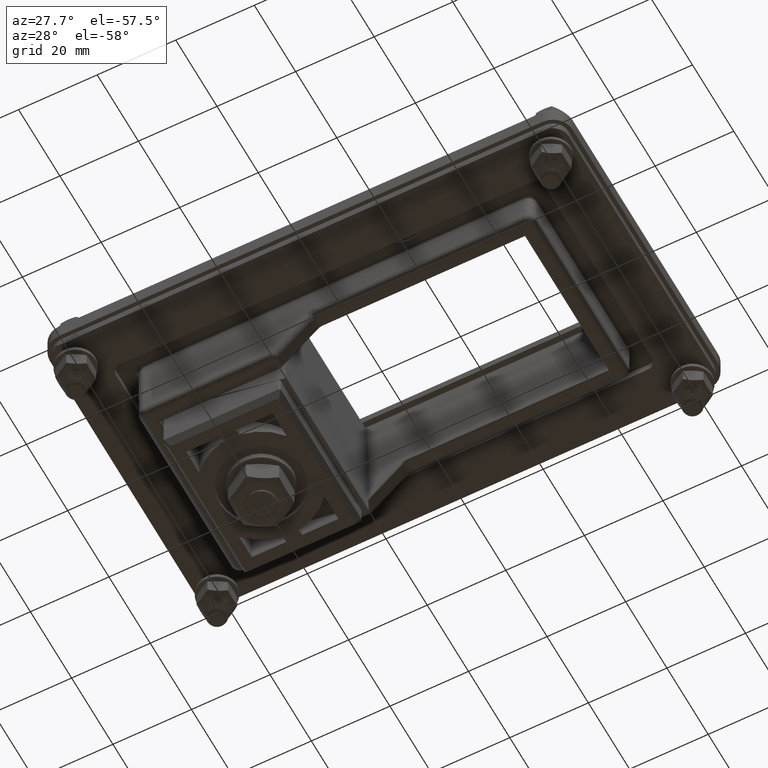
[diagram: clean part render]
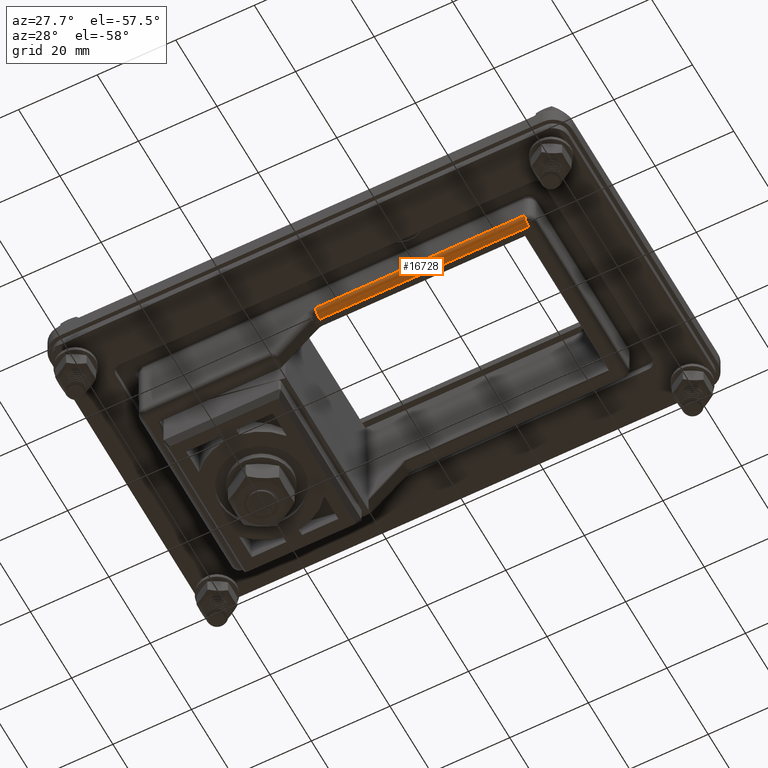
[diagram: same view with one face highlighted and labeled with its STEP entity id]
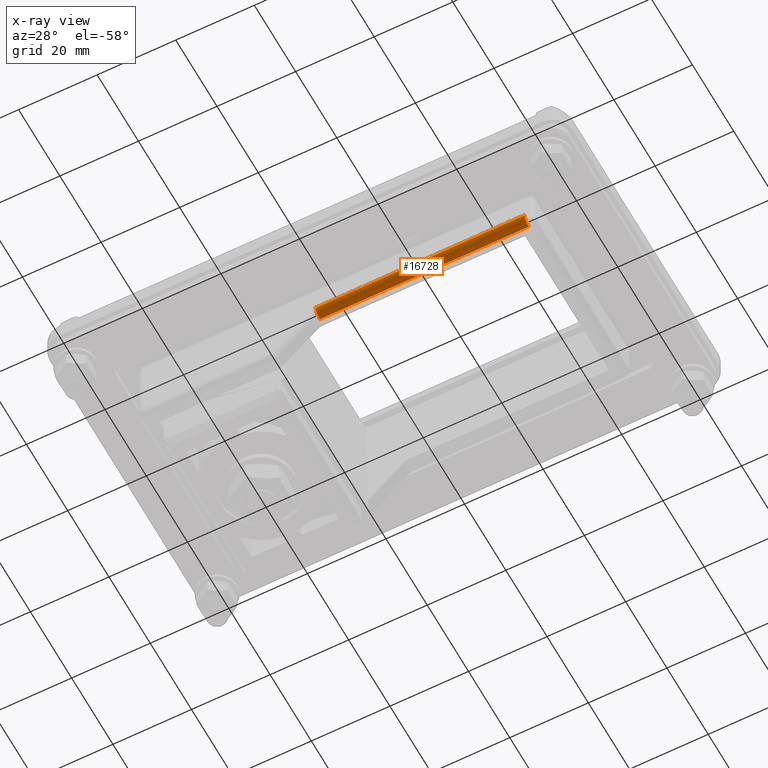
[diagram: x-ray of the same camera — body ghosted, the highlighted face saturated]
A machine part, auxiliary view. The second image highlights one B-rep face of the part: STEP entity #16728.
The next image is the same camera in x-ray: the body ghosted, the highlighted face saturated — about 0% of this face is hidden behind the body in this view.
In plain terms, the highlighted cylindrical surface (edge-blend (fillet) strip) has radius 2 mm, axis along (1, 0, 0).
Its self-contained STEP definition (entity closure, byte-faithful):
#1183=CARTESIAN_POINT('',(-14.671572875253826,-22.26737757881002,0.0));
#1184=VERTEX_POINT('',#1183);
#1226=CARTESIAN_POINT('',(38.517377578810056,-22.26737757881002,0.0));
#1227=VERTEX_POINT('',#1226);
#1234=CARTESIAN_POINT('',(-14.671572875253826,-22.26737757881002,0.0));
#1235=DIRECTION('',(1.0,0.0,0.0));
#1236=VECTOR('',#1235,53.188950454063885);
#1237=LINE('',#1234,#1236);
#1238=EDGE_CURVE('',#1184,#1227,#1237,.T.);
#16676=CARTESIAN_POINT('',(-14.671572875253826,-24.267301424938363,1.982546929003252));
#16677=VERTEX_POINT('',#16676);
#16678=CARTESIAN_POINT('',(-14.671572875253826,-22.26737757881002,2.0));
#16679=DIRECTION('',(1.0,0.0,0.0));
#16680=DIRECTION('',(0.0,-0.999961923064171,-0.008726535498374));
#16681=AXIS2_PLACEMENT_3D('',#16678,#16679,#16680);
#16682=CIRCLE('',#16681,2.000000000000001);
#16683=EDGE_CURVE('',#16677,#1184,#16682,.T.);
#16704=CARTESIAN_POINT('',(15.250000000000011,-22.26737757881002,2.0));
#16705=DIRECTION('',(1.0,0.0,0.0));
#16706=DIRECTION('',(0.0,-0.704014724455969,-0.710185375623284));
#16707=AXIS2_PLACEMENT_3D('',#16704,#16705,#16706);
#16708=CYLINDRICAL_SURFACE('',#16707,2.0);
#16709=CARTESIAN_POINT('',(38.517377578810056,-24.267301424938363,1.982546929003252));
#16710=VERTEX_POINT('',#16709);
#16711=CARTESIAN_POINT('',(38.517377578810056,-22.26737757881002,2.0));
#16712=DIRECTION('',(-1.0,0.0,0.0));
#16713=DIRECTION('',(0.0,0.0,-1.0));
#16714=AXIS2_PLACEMENT_3D('',#16711,#16712,#16713);
#16715=CIRCLE('',#16714,2.0);
#16716=EDGE_CURVE('',#1227,#16710,#16715,.T.);
#16717=ORIENTED_EDGE('',*,*,#16716,.T.);
#16718=CARTESIAN_POINT('',(38.517377578810056,-24.267301424938363,1.982546929003252));
#16719=DIRECTION('',(-1.0,0.0,0.0));
#16720=VECTOR('',#16719,53.188950454063885);
#16721=LINE('',#16718,#16720);
#16722=EDGE_CURVE('',#16710,#16677,#16721,.T.);
#16723=ORIENTED_EDGE('',*,*,#16722,.T.);
#16724=ORIENTED_EDGE('',*,*,#16683,.T.);
#16725=ORIENTED_EDGE('',*,*,#1238,.T.);
#16726=EDGE_LOOP('',(#16717,#16723,#16724,#16725));
#16727=FACE_OUTER_BOUND('',#16726,.T.);
#16728=ADVANCED_FACE('',(#16727),#16708,.T.);